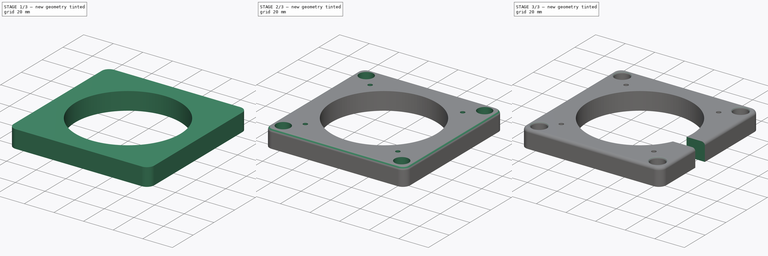
[diagram: build sequence overview — one tinted view per stage of 3, left to right]
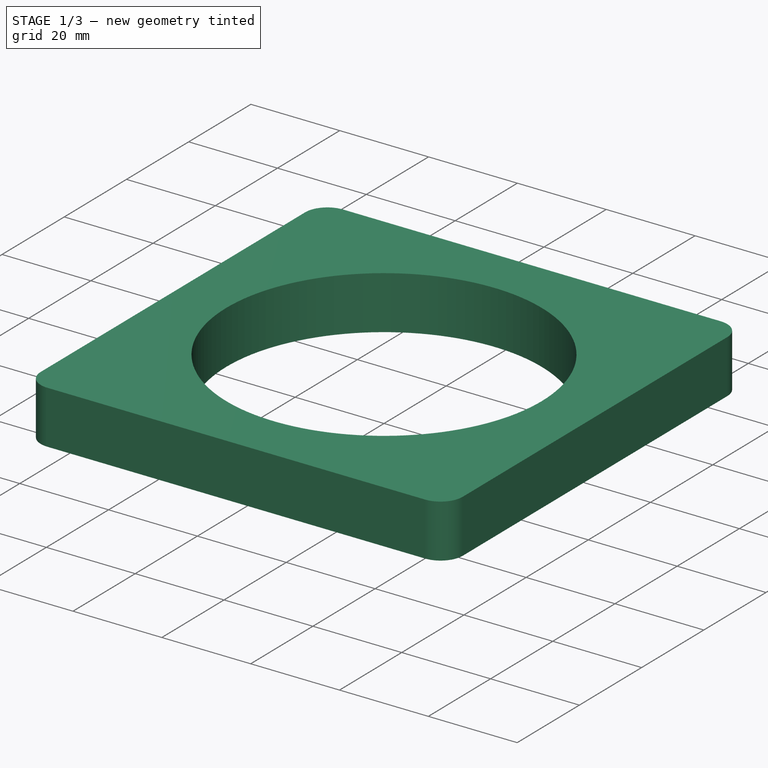
[diagram: stage 1 of 3 — iso view after this stage's code; geometry added in this stage tinted green]
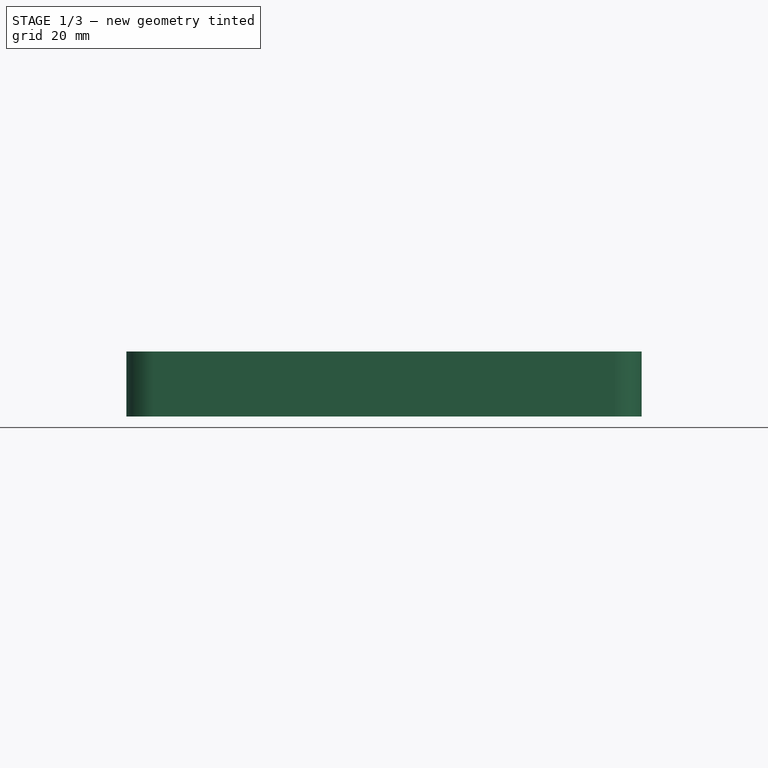
[diagram: stage 1 of 3 — front view after this stage's code; geometry added in this stage tinted green]
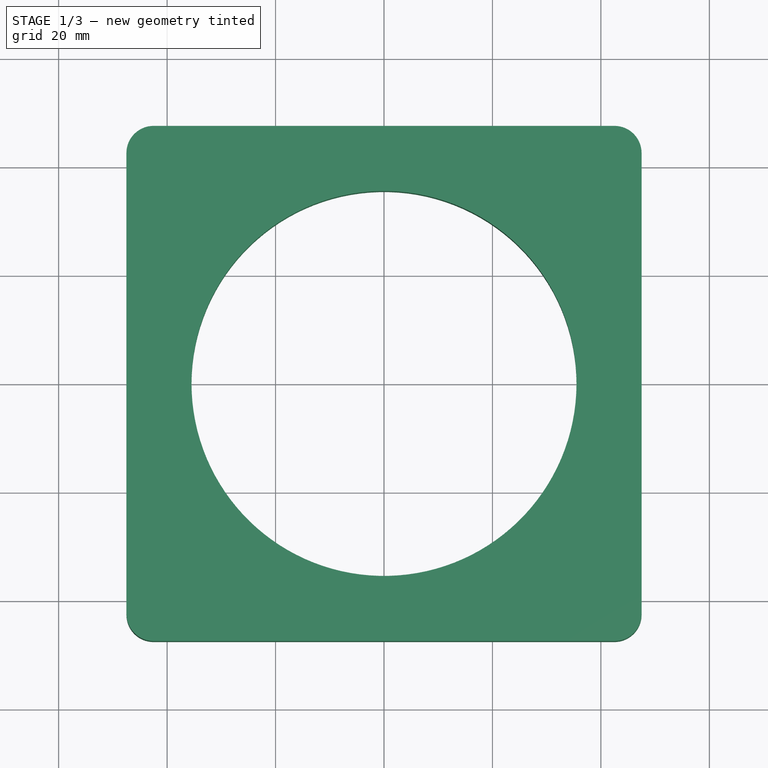
[diagram: stage 1 of 3 — top view after this stage's code; geometry added in this stage tinted green]
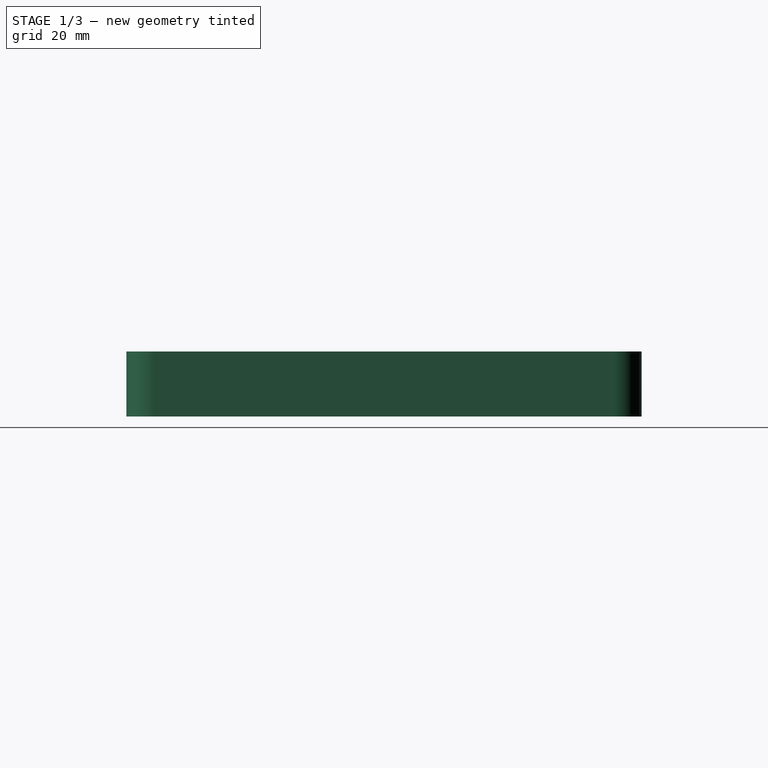
[diagram: stage 1 of 3 — right view after this stage's code; geometry added in this stage tinted green]
FCSTD DOCUMENT  (FreeCAD 1.1R20260325 (Git shallow))
Label: SwitchOffset
License: Creative Commons Attribution 4.0
objects: Sketcher::SketchObject×4, PartDesign::Fillet×3, PartDesign::Hole×2, App::Point×1, PartDesign::Pad×1, PartDesign::Pocket×1, PartDesign::Body×1
note: 30 computed .brp shape members not serialized (recipe doc carries the construction recipe); baked Part::Feature solids carry a one-line shape summary decoded from their .brp

FEATURE [App::Point] Origin001
  Role = Origin
FEATURE [Sketcher::SketchObject] Sketch
  ArcFitTolerance = 1e-06
  AttachmentSupport = -> [Origin]
  ExternalTypes = [0]
  FullyConstrained = true
  MakeInternals = false
  MapMode = 5
  _ExternalGeoVersion = 1
  sketch-geometry (5):
    g0: LineSegment StartX=-47.5 StartY=47.5 StartZ=0 EndX=-47.5 EndY=-47.5 EndZ=0
    g1: LineSegment StartX=-47.5 StartY=-47.5 StartZ=0 EndX=47.5 EndY=-47.5 EndZ=0
    g2: LineSegment StartX=47.5 StartY=-47.5 StartZ=0 EndX=47.5 EndY=47.5 EndZ=0
    g3: LineSegment StartX=47.5 StartY=47.5 StartZ=0 EndX=-47.5 EndY=47.5 EndZ=0
    g4: Circle CenterX=0 CenterY=0 CenterZ=0 NormalX=0 NormalY=0 NormalZ=1 AngleXU=0 Radius=35.5
  constraints (13):
    c: Coincident(g0,g1)
    c: Coincident(g1,g2)
    c: Coincident(g2,g3)
    c: Coincident(g3,g0)
    c: Vertical(g0)
    c: Vertical(g2)
    c: Horizontal(g1)
    c: Horizontal(g3)
    c: Distance(g0,g2) = 95
    c: Distance(g1,g3) = 95
    c: Symmetric(g0,g2,g-1)
    c: Diameter(g4) = 71
    c: Coincident(g4,g-1)
FEATURE [PartDesign::Pad] Pad
  Direction = (0,0,1)
  Length = 12
  Length2 = 10
  Profile = -> Sketch
  ReferenceAxis = -> Sketch [N_Axis]
  SideType = 0
  Suppressed = false
  Type = 0
  Type2 = 0
FEATURE [PartDesign::Fillet] Fillet
  Base = -> Pad [Edge2,Edge5,Edge8,Edge1]
  BaseFeature = -> Pad
  Radius = 5
  SupportTransform = false
  Suppressed = false
  UseAllEdges = false
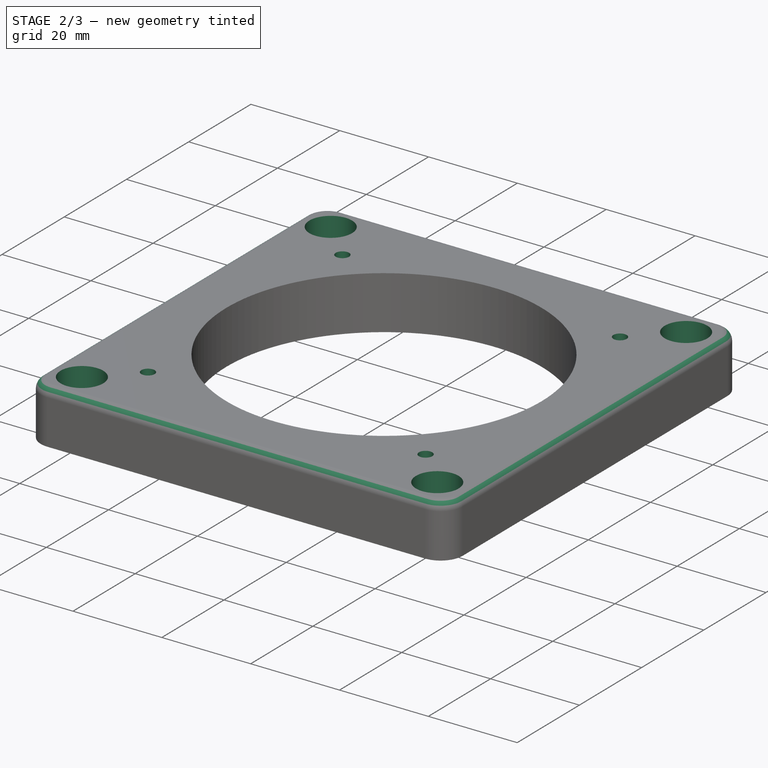
[diagram: stage 2 of 3 — iso view after this stage's code; geometry added in this stage tinted green]
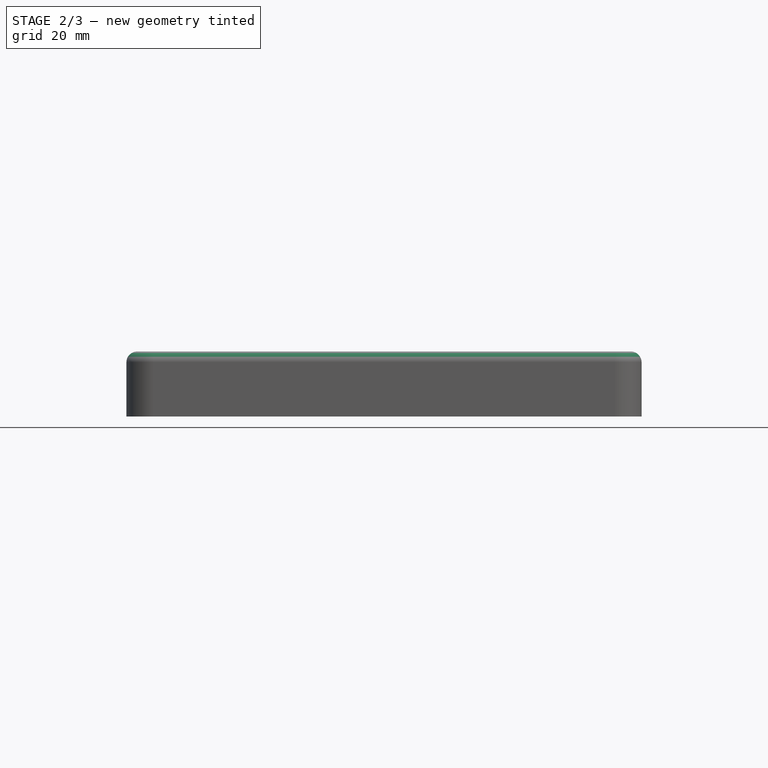
[diagram: stage 2 of 3 — front view after this stage's code; geometry added in this stage tinted green]
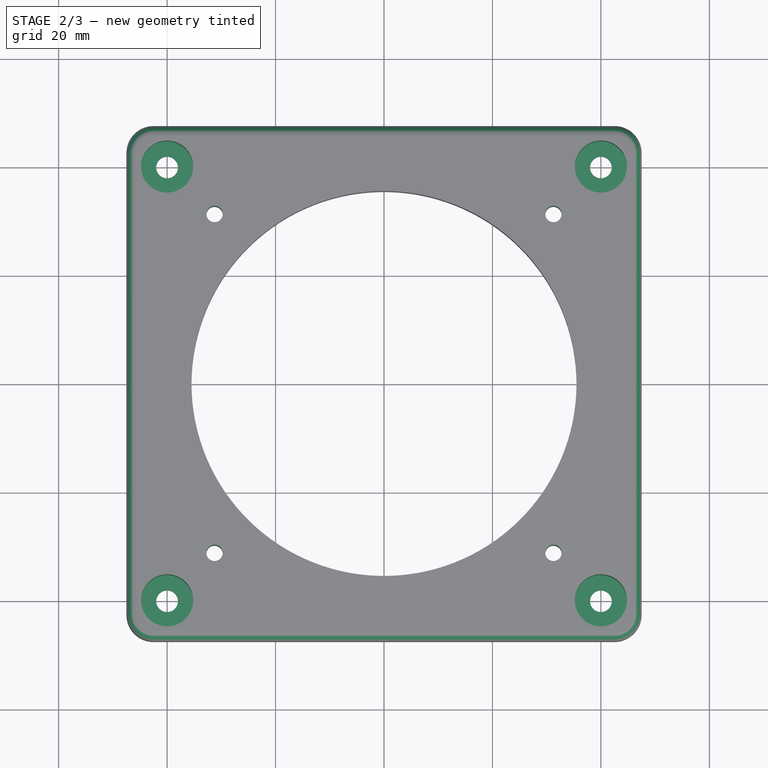
[diagram: stage 2 of 3 — top view after this stage's code; geometry added in this stage tinted green]
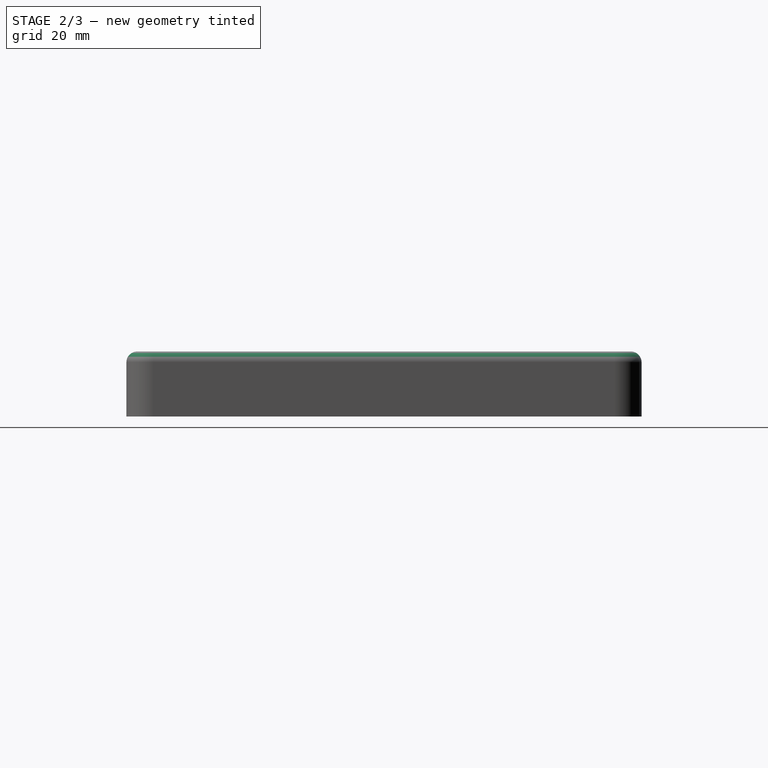
[diagram: stage 2 of 3 — right view after this stage's code; geometry added in this stage tinted green]
FEATURE [PartDesign::Fillet] Fillet001
  Base = -> Fillet [Edge18]
  BaseFeature = -> Fillet
  Radius = 2
  SupportTransform = false
  Suppressed = false
  UseAllEdges = false
FEATURE [Sketcher::SketchObject] Sketch001
  ArcFitTolerance = 1e-06
  AttachmentSupport = -> [Fillet001]
  ExternalTypes = [0]
  FullyConstrained = true
  MakeInternals = false
  MapMode = 5
  Placement = pos=(0,0,12) rot=(0,0,1;0rad)
  _ExternalGeoVersion = 1
  sketch-geometry (6):
    g0: GeomPoint X=-31.25 Y=31.25 Z=0
    g1: GeomPoint X=31.25 Y=31.25 Z=0
    g2: GeomPoint X=31.25 Y=-31.25 Z=0
    g3: GeomPoint X=-31.25 Y=-31.25 Z=0
    g4: LineSegment [constr] StartX=-31.25 StartY=31.25 StartZ=0 EndX=31.25 EndY=31.25 EndZ=0
    g5: LineSegment [constr] StartX=-31.25 StartY=31.25 StartZ=0 EndX=-31.25 EndY=-31.25 EndZ=0
  constraints (9):
    c: Symmetric(g0,g2,g-1)
    c: Symmetric(g0,g1,g-2)
    c: Symmetric(g0,g3,g-1)
    c: Coincident(g4,g0)
    c: Coincident(g4,g1)
    c: Coincident(g5,g0)
    c: Coincident(g5,g3)
    c: Equal(g5,g4)
    c: DistanceX(g4,g4) = 62.5
FEATURE [PartDesign::Hole] Hole
  BaseFeature = -> Fillet001
  BaseProfileType = 7
  CustomThreadClearance = 0
  Depth = 272.468
  DepthType = 1
  Diameter = 3
  DrillForDepth = false
  DrillPoint = 1
  DrillPointAngle = 118
  HoleCutCountersinkAngle = 90
  HoleCutCustomValues = false
  HoleCutDepth = 0
  HoleCutDiameter = 0
  HoleCutType = 0
  ModelThread = false
  Profile = -> Sketch001
  Suppressed = false
  Tapered = false
  TaperedAngle = 90
  ThreadClass = 0
  ThreadDepth = 272.468
  ThreadDepthType = 0
  ThreadDiameter = 3
  ThreadDirection = 0
  ThreadFit = 0
  ThreadSize = 0
  ThreadType = 0
  Threaded = false
  UseCustomThreadClearance = false
FEATURE [Sketcher::SketchObject] Sketch002
  ArcFitTolerance = 1e-06
  AttachmentSupport = -> [Hole]
  ExternalGeometry = -> [Hole]
  ExternalTypes = [0,0]
  FullyConstrained = true
  MakeInternals = false
  MapMode = 5
  Placement = pos=(0,0,12) rot=(0,0,1;0rad)
  _ExternalGeoVersion = 1
  sketch-geometry (4):
    g0: GeomPoint X=-40 Y=40 Z=0
    g1: GeomPoint X=40 Y=40 Z=0
    g2: GeomPoint X=40 Y=-40 Z=0
    g3: GeomPoint X=-40 Y=-40 Z=0
  constraints (6):
    c: DistanceX(g-4,g0) = 7.5
    c: DistanceY(g0,g-3) = 7.5
    c: Symmetric(g0,g2,g-1)
    c: Vertical(g0,g3)
    c: Horizontal(g0,g1)
    c: Symmetric(g3,g1,g-1)
FEATURE [PartDesign::Hole] Hole001
  BaseFeature = -> Hole
  BaseProfileType = 7
  CustomThreadClearance = 0
  Depth = 272.468
  DepthType = 1
  Diameter = 4
  DrillForDepth = false
  DrillPoint = 1
  DrillPointAngle = 118
  HoleCutCountersinkAngle = 90
  HoleCutCustomValues = false
  HoleCutDepth = 9
  HoleCutDiameter = 9.6
  HoleCutType = 1
  ModelThread = false
  Profile = -> Sketch002
  Suppressed = false
  Tapered = false
  TaperedAngle = 90
  ThreadClass = 0
  ThreadDepth = 272.468
  ThreadDepthType = 0
  ThreadDiameter = 4
  ThreadDirection = 0
  ThreadFit = 0
  ThreadSize = 0
  ThreadType = 0
  Threaded = false
  UseCustomThreadClearance = false
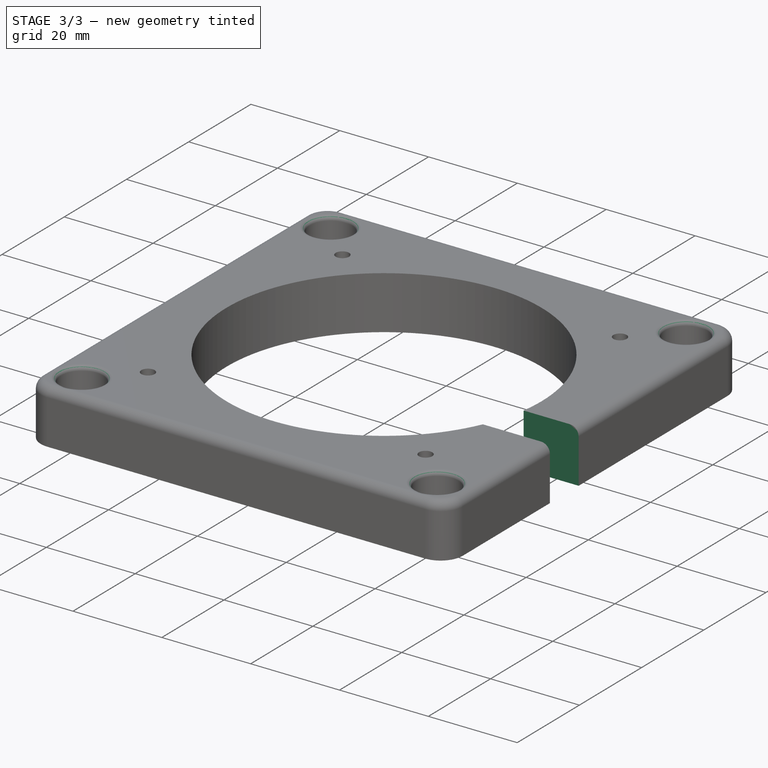
[diagram: stage 3 of 3 — iso view after this stage's code; geometry added in this stage tinted green]
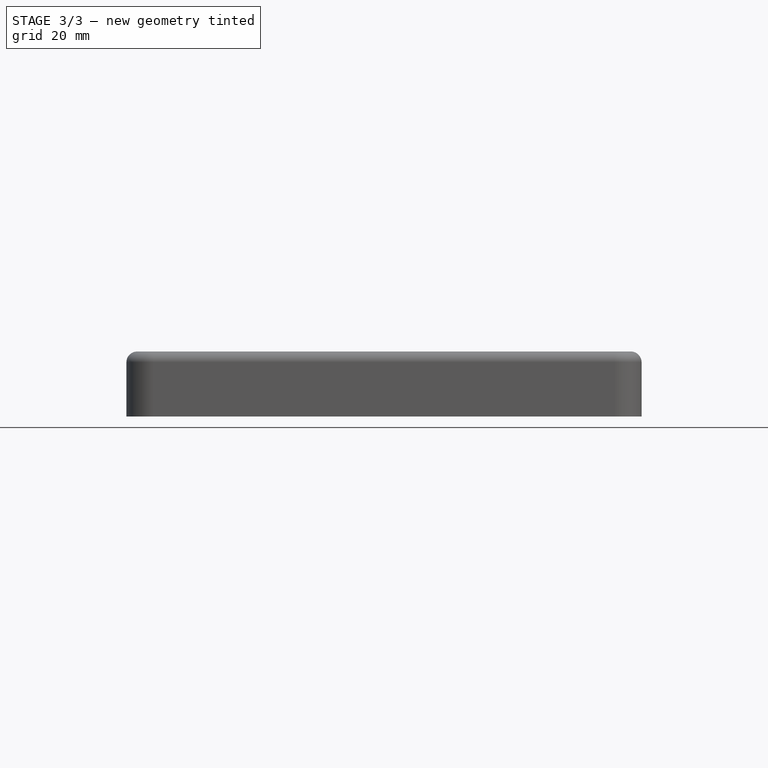
[diagram: stage 3 of 3 — front view after this stage's code; geometry added in this stage tinted green]
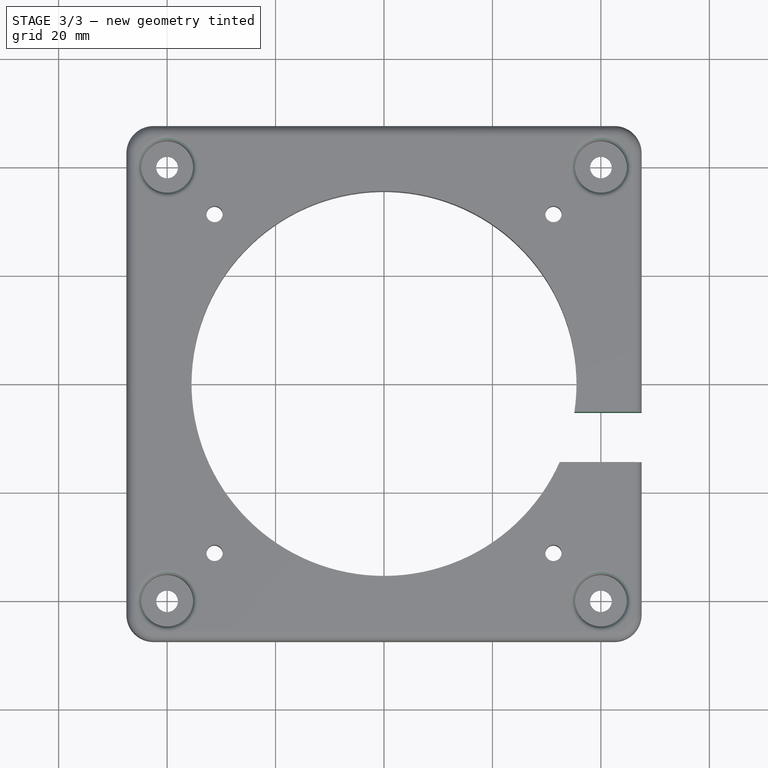
[diagram: stage 3 of 3 — top view after this stage's code; geometry added in this stage tinted green]
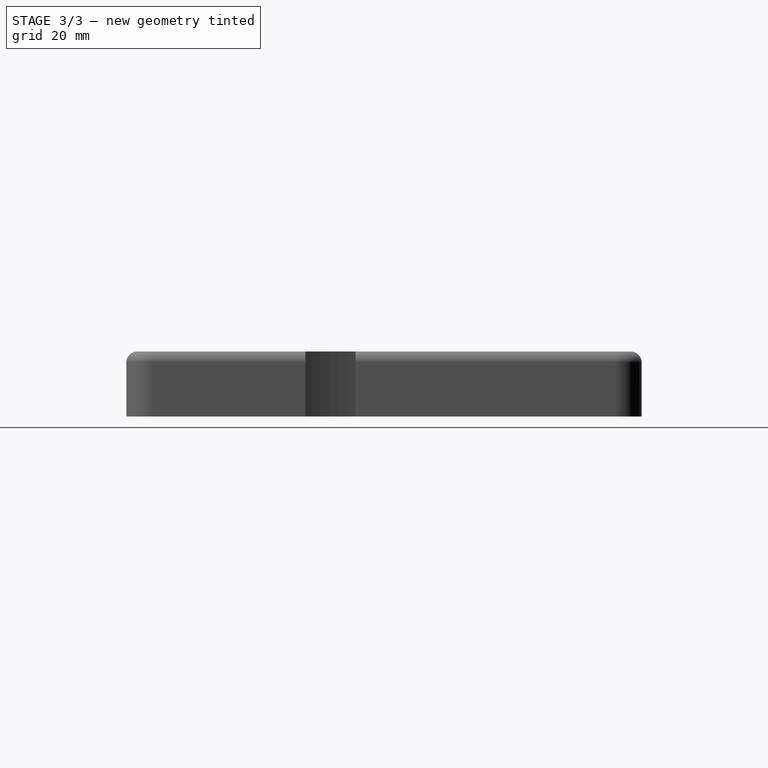
[diagram: stage 3 of 3 — right view after this stage's code; geometry added in this stage tinted green]
FEATURE [PartDesign::Fillet] Fillet002
  Base = -> Hole001 [Edge38,Edge43,Edge46,Edge40]
  BaseFeature = -> Hole001
  Radius = 1
  SupportTransform = false
  Suppressed = false
  UseAllEdges = false
FEATURE [Sketcher::SketchObject] Sketch003
  ArcFitTolerance = 1e-06
  AttachmentSupport = -> [Fillet002]
  ExternalGeometry = -> [Pad]
  ExternalTypes = [0]
  FullyConstrained = true
  MakeInternals = false
  MapMode = 5
  Placement = pos=(47.5,0,0) rot=(0.57735,0.57735,0.57735;2.0944rad)
  _ExternalGeoVersion = 1
  sketch-geometry (4):
    g0: LineSegment StartX=-14.5 StartY=0 StartZ=0 EndX=-14.5 EndY=12 EndZ=0
    g1: LineSegment StartX=-5.25 StartY=12 StartZ=0 EndX=-5.25 EndY=0 EndZ=0
    g2: LineSegment StartX=-5.25 StartY=0 StartZ=0 EndX=-14.5 EndY=0 EndZ=0
    g3: LineSegment StartX=-5.25 StartY=12 StartZ=0 EndX=-14.5 EndY=12 EndZ=0
  constraints (12):
    c: PointOnObject(g0,g-1)
    c: Vertical(g0)
    c: PointOnObject(g1,g-1)
    c: Vertical(g1)
    c: Coincident(g1,g2)
    c: Coincident(g2,g0)
    c: DistanceX(g-3,g0) = 33
    c: PointOnObject(g0,g-3)
    c: DistanceX(g2,g2) = 9.25
    c: PointOnObject(g1,g-3)
    c: Coincident(g3,g1)
    c: Coincident(g3,g0)
FEATURE [PartDesign::Pocket] Pocket
  BaseFeature = -> Fillet002
  Direction = (-1,0,0)
  Length = 30
  Length2 = 5
  Profile = -> Sketch003
  ReferenceAxis = -> Sketch003 [N_Axis]
  SideType = 0
  Suppressed = false
  Type = 0
  Type2 = 0
FEATURE [PartDesign::Body] Body
  AllowCompound = false
  Group = -> [Sketch,Pad,Fillet,Fillet001,Sketch001,Hole,Sketch002,Hole001,Fillet002,Sketch003,Pocket]
  Origin = -> Origin
  Tip = -> Pocket
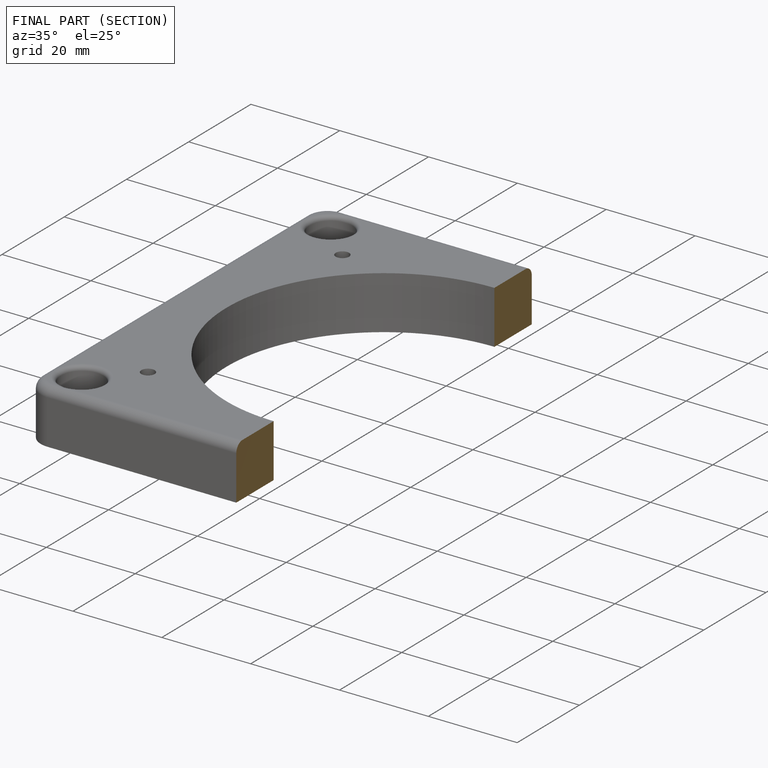
[diagram: finished part — half-section view (interior)]
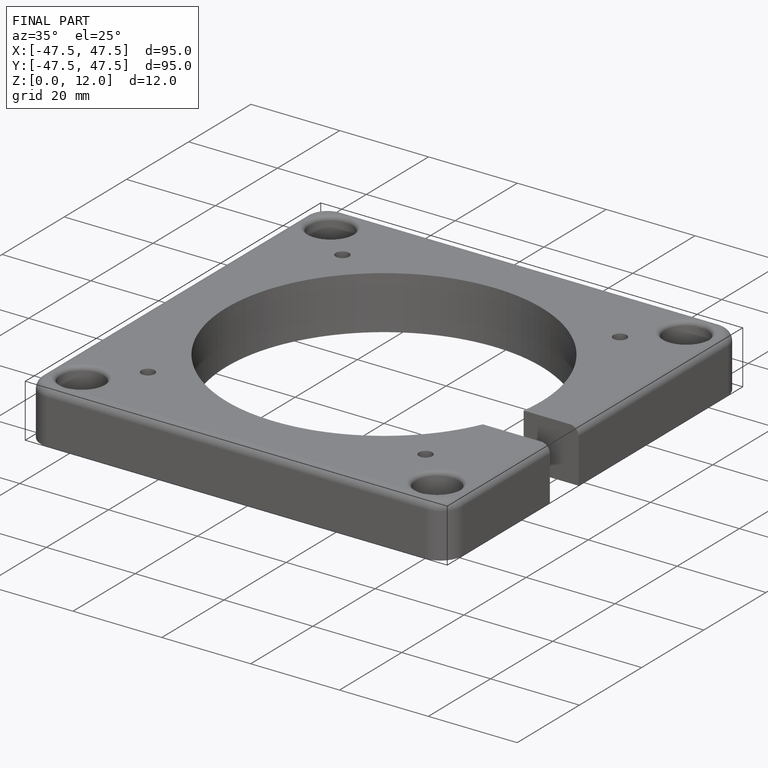
[diagram: finished part — iso view with bounding-box wireframe]
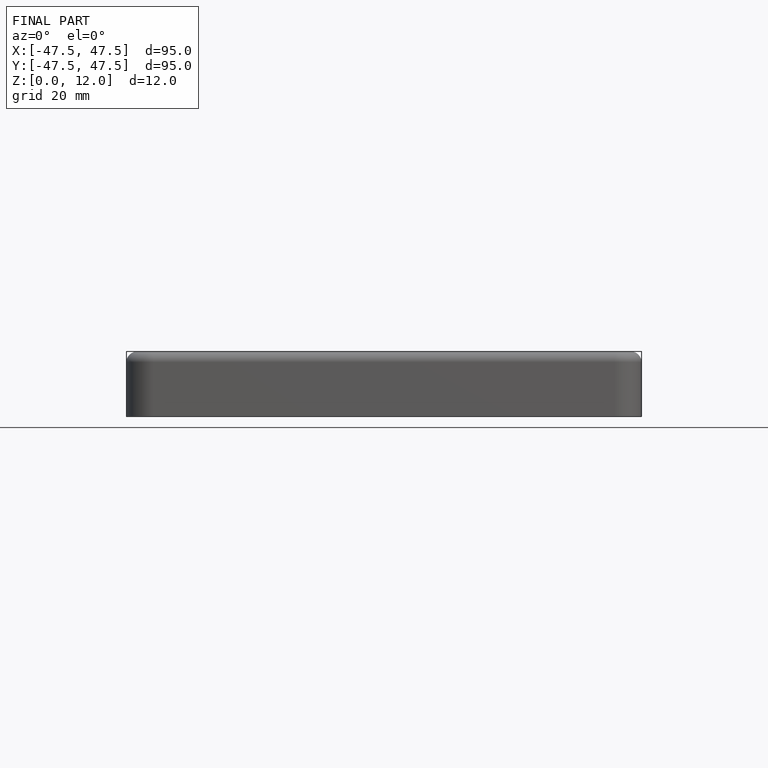
[diagram: finished part — front view with bounding-box wireframe]
